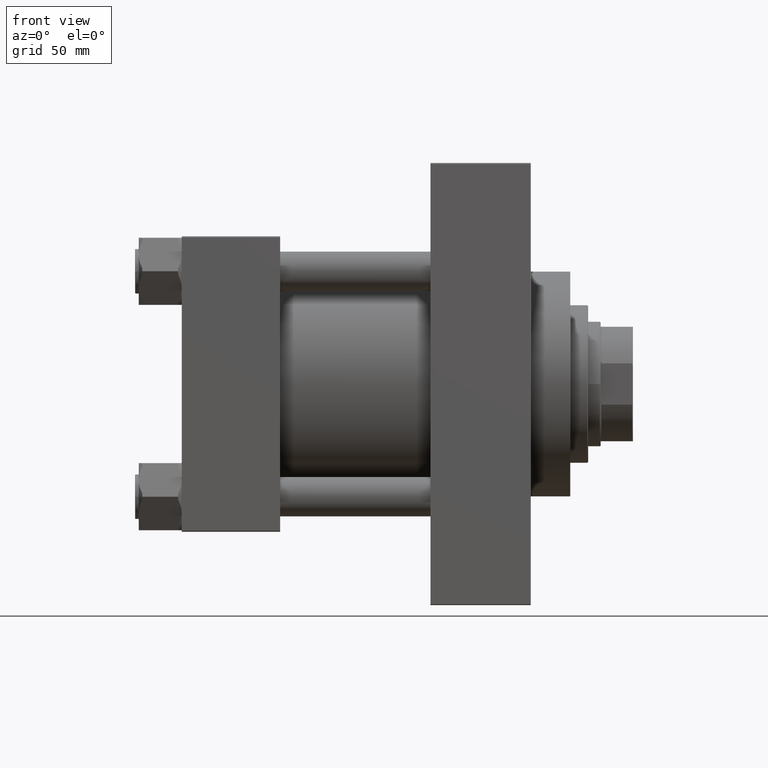
[diagram: clean part render]
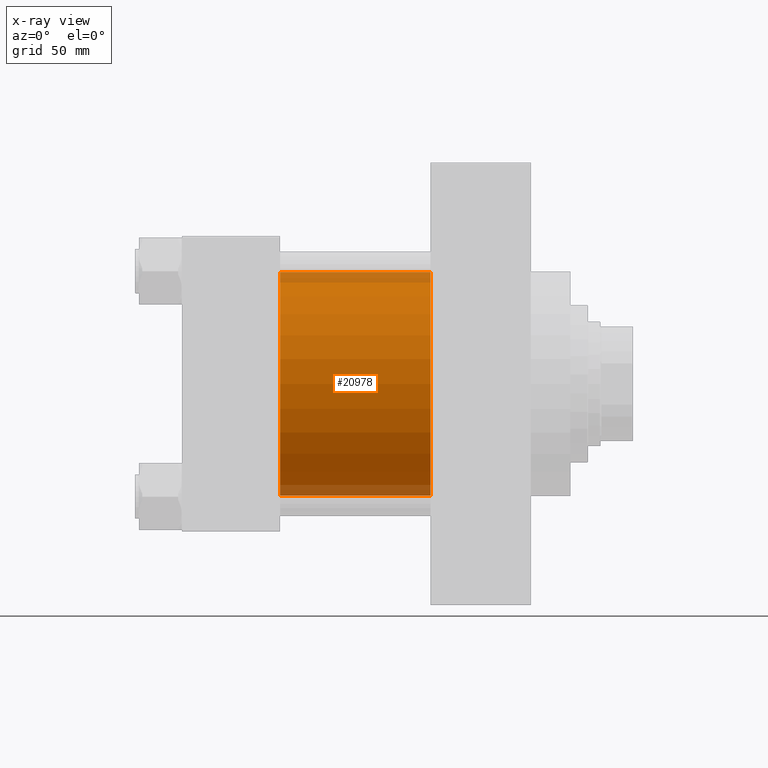
[diagram: x-ray — body ghosted, one internal face saturated and labeled with its STEP entity id]
A machine part, front view, then the same camera in x-ray: the body is ghosted and one INTERNAL B-rep face — a face not visible from any outside direction — is saturated and labeled: STEP entity #20978.
In plain terms, the highlighted cylindrical surface (partial cylindrical patch) has radius 62.5 mm, axis along (-1, -0, -0).
Its self-contained STEP definition (entity closure, byte-faithful):
#425 = AXIS2_PLACEMENT_3D ( 'NONE', #35162, #17037, #31296 ) ;
#608 = EDGE_LOOP ( 'NONE', ( #2542, #43098, #18737, #20575 ) ) ;
#1406 = CARTESIAN_POINT ( 'NONE',  ( 139.0000000000000000, 5.051957280705745584E-15, -62.50000000000000000 ) ) ;
#2542 = ORIENTED_EDGE ( 'NONE', *, *, #47484, .T. ) ;
#6098 = DIRECTION ( 'NONE',  ( -1.000000000000000000, -0.000000000000000000, -0.000000000000000000 ) ) ;
#9760 = DIRECTION ( 'NONE',  ( 1.000000000000000000, 0.000000000000000000, 0.000000000000000000 ) ) ;
#10625 = EDGE_CURVE ( 'NONE', #43069, #38305, #26487, .T. ) ;
#11553 = CARTESIAN_POINT ( 'NONE',  ( 139.0000000000000000, -2.602085213965210642E-15, 62.50000000000000000 ) ) ;
#12417 = CARTESIAN_POINT ( 'NONE',  ( 55.00000000000000000, 5.051957280705745584E-15, -62.50000000000000000 ) ) ;
#13089 = CARTESIAN_POINT ( 'NONE',  ( 139.0000000000000000, -2.602085213965210642E-15, 0.000000000000000000 ) ) ;
#13706 = CARTESIAN_POINT ( 'NONE',  ( 139.0000000000000000, -2.602085213965210642E-15, 62.50000000000000000 ) ) ;
#16712 = CYLINDRICAL_SURFACE ( 'NONE', #37298, 62.50000000000000000 ) ;
#17037 = DIRECTION ( 'NONE',  ( 1.000000000000000000, 0.000000000000000000, 0.000000000000000000 ) ) ;
#18737 = ORIENTED_EDGE ( 'NONE', *, *, #37186, .F. ) ;
#20575 = ORIENTED_EDGE ( 'NONE', *, *, #26145, .F. ) ;
#20636 = CIRCLE ( 'NONE', #22927, 62.50000000000000000 ) ;
#20978 = ADVANCED_FACE ( 'NONE', ( #38448 ), #16712, .F. ) ;
#22927 = AXIS2_PLACEMENT_3D ( 'NONE', #32204, #9760, #43058 ) ;
#23136 = DIRECTION ( 'NONE',  ( -1.000000000000000000, -0.000000000000000000, -0.000000000000000000 ) ) ;
#25882 = VECTOR ( 'NONE', #23136, 1000.000000000000000 ) ;
#26145 = EDGE_CURVE ( 'NONE', #31767, #39272, #41487, .T. ) ;
#26487 = LINE ( 'NONE', #1406, #44008 ) ;
#27212 = DIRECTION ( 'NONE',  ( -1.000000000000000000, -0.000000000000000000, -0.000000000000000000 ) ) ;
#31205 = DIRECTION ( 'NONE',  ( 0.000000000000000000, 0.000000000000000000, 1.000000000000000000 ) ) ;
#31296 = DIRECTION ( 'NONE',  ( 0.000000000000000000, 0.000000000000000000, -1.000000000000000000 ) ) ;
#31767 = VERTEX_POINT ( 'NONE', #13706 ) ;
#32204 = CARTESIAN_POINT ( 'NONE',  ( 139.0000000000000000, -2.602085213965210642E-15, 0.000000000000000000 ) ) ;
#35162 = CARTESIAN_POINT ( 'NONE',  ( 55.00000000000000000, -2.602085213965210642E-15, 0.000000000000000000 ) ) ;
#36720 = CARTESIAN_POINT ( 'NONE',  ( 139.0000000000000000, 5.051957280705745584E-15, -62.50000000000000000 ) ) ;
#37186 = EDGE_CURVE ( 'NONE', #39272, #38305, #42787, .T. ) ;
#37298 = AXIS2_PLACEMENT_3D ( 'NONE', #13089, #6098, #31205 ) ;
#38305 = VERTEX_POINT ( 'NONE', #12417 ) ;
#38448 = FACE_OUTER_BOUND ( 'NONE', #608, .T. ) ;
#39029 = CARTESIAN_POINT ( 'NONE',  ( 55.00000000000000000, -2.602085213965210642E-15, 62.50000000000000000 ) ) ;
#39272 = VERTEX_POINT ( 'NONE', #39029 ) ;
#41487 = LINE ( 'NONE', #11553, #25882 ) ;
#42787 = CIRCLE ( 'NONE', #425, 62.50000000000000000 ) ;
#43058 = DIRECTION ( 'NONE',  ( 0.000000000000000000, 0.000000000000000000, -1.000000000000000000 ) ) ;
#43069 = VERTEX_POINT ( 'NONE', #36720 ) ;
#43098 = ORIENTED_EDGE ( 'NONE', *, *, #10625, .T. ) ;
#44008 = VECTOR ( 'NONE', #27212, 1000.000000000000000 ) ;
#47484 = EDGE_CURVE ( 'NONE', #31767, #43069, #20636, .T. ) ;